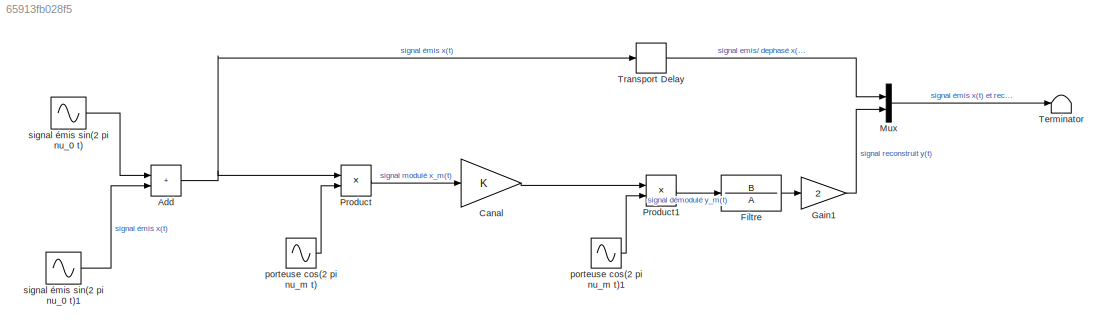
MODEL slx_65913fb028f5
KIND model
CONFIG AbsTol = auto
CONFIG EnableMultiTasking = on
CONFIG FixedStep = auto
CONFIG MaxStep = auto
CONFIG MinStep = auto
CONFIG RelTol = 1e-3
CONFIG SampleTimeConstraint = Unconstrained
CONFIG SolverName = ode45
CONFIG StartTime = 0.0
CONFIG StopTime = 8
BLOCK [Sum] Add
  IconShape = rectangular
  Ports = [2, 1]
BLOCK [Gain] Canal
BLOCK [TransferFcn] Filtre
  Denominator = A
  Numerator = B
BLOCK [Gain] Gain1
  Gain = 2
BLOCK [Mux] Mux
  DisplayOption = bar
  Inputs = 2
  Ports = [2, 1]
BLOCK [Product] Product
  Ports = [2, 1]
  RndMeth = Zero
BLOCK [Product] Product1
  Ports = [2, 1]
  RndMeth = Zero
BLOCK [Terminator] Terminator
BLOCK [TransportDelay] Transport Delay
  DelayTime = 0.66
  Ports = [1, 1]
BLOCK [Sin] porteuse cos(2 pi nu_m t)
  Frequency = 2*pi*num
  Ports = [0, 1]
  SampleTime = 0
BLOCK [Sin] porteuse cos(2 pi nu_m t)1
  Frequency = 2*pi*num
  Ports = [0, 1]
  SampleTime = 0
BLOCK [Sin] signal émis sin(2 pi nu_0 t)
  Frequency = 2*pi*nu0
  Ports = [0, 1]
  SampleTime = 0
BLOCK [Sin] signal émis sin(2 pi nu_0 t)1
  Frequency = 2*pi*nu1
  Ports = [0, 1]
  SampleTime = 0
NET Add:1 -> Product:1, Transport Delay:1
LINE Canal:1 -> Product1:1
LINE Filtre:1 -> Gain1:1
LINE Gain1:1 -> Mux:2
LINE Mux:1 -> Terminator:1
LINE Product1:1 -> Filtre:1
LINE Product:1 -> Canal:1
LINE Transport Delay:1 -> Mux:1
LINE porteuse cos(2 pi nu_m t)1:1 -> Product1:2
LINE porteuse cos(2 pi nu_m t):1 -> Product:2
LINE signal émis sin(2 pi nu_0 t)1:1 -> Add:2
LINE signal émis sin(2 pi nu_0 t):1 -> Add:1
note: NET lines group one-source signal fan-out (src -> all destinations, sorted); 1:1 wires keep LINE
